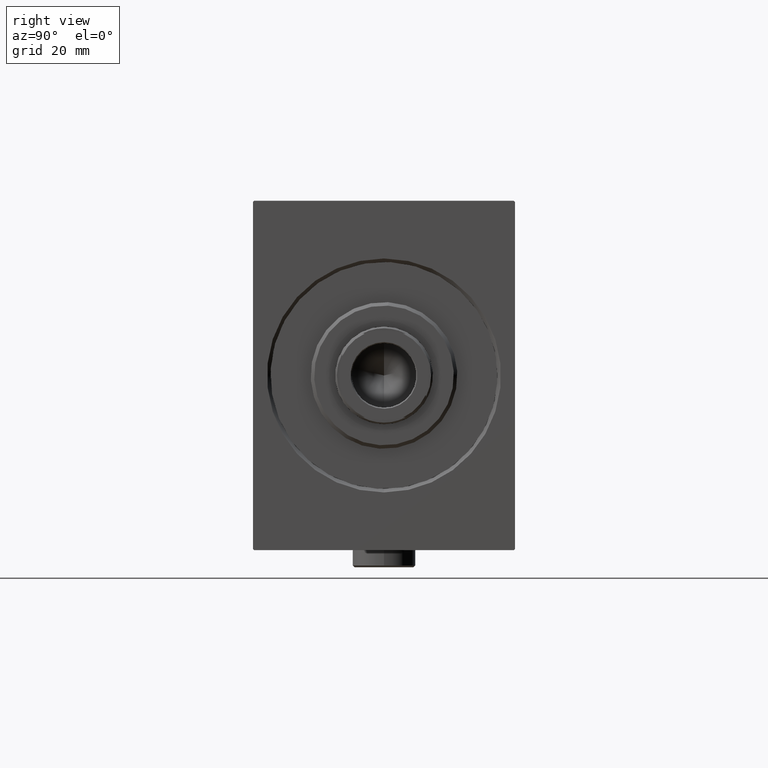
[diagram: clean part render]
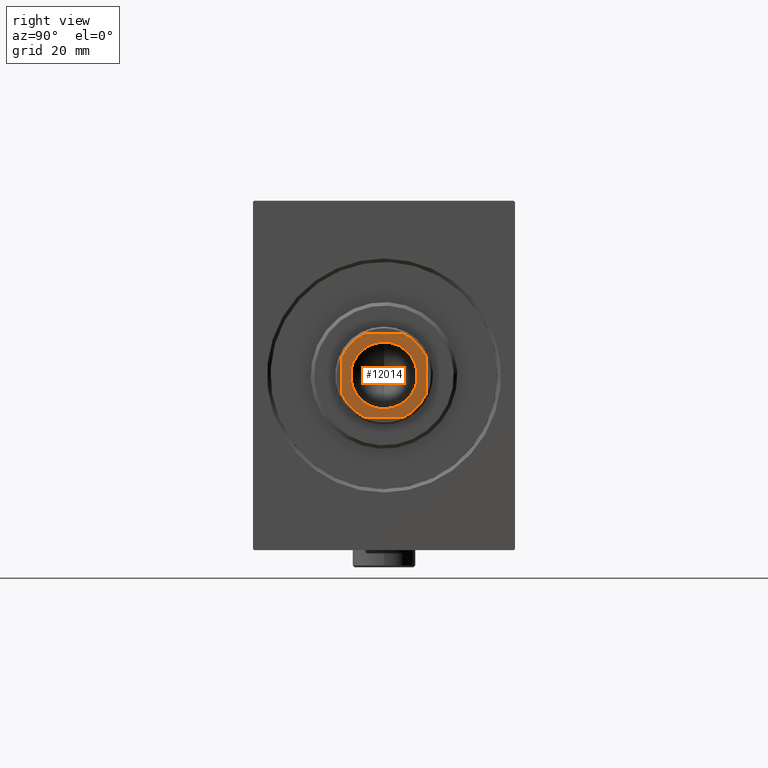
[diagram: same view with one face highlighted and labeled with its STEP entity id]
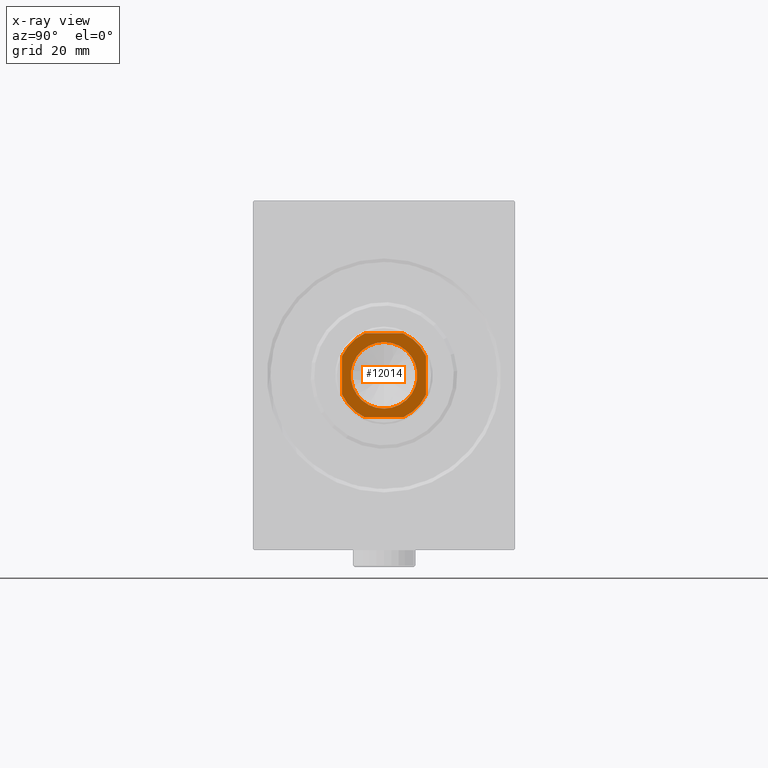
[diagram: x-ray of the same camera — body ghosted, the highlighted face saturated]
A machine part, right view. The second image highlights one B-rep face of the part: STEP entity #12014.
The next image is the same camera in x-ray: the body ghosted, the highlighted face saturated — about 0% of this face is hidden behind the body in this view.
In plain terms, the highlighted planar face has unit normal (1, 0, -0).
Its self-contained STEP definition (entity closure, byte-faithful):
#60 = CARTESIAN_POINT ( 'NONE',  ( -12.00000000000000000, -5.499090833946983281, 151.0000000000000284 ) ) ;
#241 = VECTOR ( 'NONE', #40934, 1000.000000000000000 ) ;
#541 = CARTESIAN_POINT ( 'NONE',  ( 9.549999999999988276, 0.000000000000000000, 151.0000000000000284 ) ) ;
#1641 = VECTOR ( 'NONE', #7407, 1000.000000000000000 ) ;
#2722 = AXIS2_PLACEMENT_3D ( 'NONE', #17039, #20176, #37433 ) ;
#3388 = EDGE_CURVE ( 'NONE', #6041, #34037, #35086, .T. ) ;
#3492 = VERTEX_POINT ( 'NONE', #28358 ) ;
#3734 = EDGE_CURVE ( 'NONE', #3492, #22047, #8133, .T. ) ;
#3996 = EDGE_LOOP ( 'NONE', ( #23073, #41024, #7631, #35671, #40204, #37001, #34047, #26185 ) ) ;
#5321 = DIRECTION ( 'NONE',  ( 1.000000000000000000, 0.000000000000000000, 0.000000000000000000 ) ) ;
#6041 = VERTEX_POINT ( 'NONE', #7402 ) ;
#6943 = CARTESIAN_POINT ( 'NONE',  ( 12.00000000000000533, -5.499090833947058776, 151.0000000000000284 ) ) ;
#7402 = CARTESIAN_POINT ( 'NONE',  ( 5.499090833946956636, 12.00000000000000000, 151.0000000000000284 ) ) ;
#7407 = DIRECTION ( 'NONE',  ( 1.000000000000000000, 0.000000000000000000, 0.000000000000000000 ) ) ;
#7516 = CARTESIAN_POINT ( 'NONE',  ( -12.00000000000000178, 11.99999999999999822, 151.0000000000000284 ) ) ;
#7631 = ORIENTED_EDGE ( 'NONE', *, *, #3388, .T. ) ;
#8133 = CIRCLE ( 'NONE', #33185, 9.549999999999988276 ) ;
#8283 = CIRCLE ( 'NONE', #8994, 9.549999999999988276 ) ;
#8994 = AXIS2_PLACEMENT_3D ( 'NONE', #26500, #16410, #12829 ) ;
#9186 = EDGE_CURVE ( 'NONE', #33722, #39877, #9707, .T. ) ;
#9707 = CIRCLE ( 'NONE', #34752, 13.20000000000002949 ) ;
#10161 = DIRECTION ( 'NONE',  ( 0.000000000000000000, -0.000000000000000000, -1.000000000000000000 ) ) ;
#10198 = LINE ( 'NONE', #37769, #24759 ) ;
#10243 = CARTESIAN_POINT ( 'NONE',  ( -12.00000000000000178, 11.99999999999999822, 151.0000000000000284 ) ) ;
#10612 = CARTESIAN_POINT ( 'NONE',  ( -12.00000000000000000, 5.499090833947076540, 151.0000000000000284 ) ) ;
#10627 = CIRCLE ( 'NONE', #2722, 13.19999999999997975 ) ;
#11609 = DIRECTION ( 'NONE',  ( 1.000000000000000000, 0.000000000000000000, 0.000000000000000000 ) ) ;
#12014 = ADVANCED_FACE ( 'NONE', ( #14554, #18136 ), #14780, .T. ) ;
#12829 = DIRECTION ( 'NONE',  ( 1.000000000000000000, 0.000000000000000000, 0.000000000000000000 ) ) ;
#13004 = AXIS2_PLACEMENT_3D ( 'NONE', #25295, #25079, #5321 ) ;
#13612 = LINE ( 'NONE', #10243, #39558 ) ;
#13825 = CARTESIAN_POINT ( 'NONE',  ( 0.000000000000000000, 0.000000000000000000, 151.0000000000000284 ) ) ;
#14200 = DIRECTION ( 'NONE',  ( 1.000000000000000000, 0.000000000000000000, 0.000000000000000000 ) ) ;
#14554 = FACE_BOUND ( 'NONE', #32228, .T. ) ;
#14689 = CARTESIAN_POINT ( 'NONE',  ( 5.499090833947070323, -12.00000000000000355, 151.0000000000000284 ) ) ;
#14764 = CIRCLE ( 'NONE', #18348, 13.19999999999998863 ) ;
#14780 = PLANE ( 'NONE',  #13004 ) ;
#14996 = EDGE_CURVE ( 'NONE', #18030, #36260, #13612, .T. ) ;
#16410 = DIRECTION ( 'NONE',  ( 0.000000000000000000, -0.000000000000000000, -1.000000000000000000 ) ) ;
#16860 = CIRCLE ( 'NONE', #17666, 13.20000000000002949 ) ;
#17039 = CARTESIAN_POINT ( 'NONE',  ( 0.000000000000000000, 0.000000000000000000, 151.0000000000000284 ) ) ;
#17666 = AXIS2_PLACEMENT_3D ( 'NONE', #13825, #20765, #30410 ) ;
#18030 = VERTEX_POINT ( 'NONE', #10612 ) ;
#18136 = FACE_OUTER_BOUND ( 'NONE', #3996, .T. ) ;
#18348 = AXIS2_PLACEMENT_3D ( 'NONE', #26730, #33456, #40417 ) ;
#20176 = DIRECTION ( 'NONE',  ( -0.000000000000000000, 0.000000000000000000, 1.000000000000000000 ) ) ;
#20554 = DIRECTION ( 'NONE',  ( 1.445602896647339163E-16, -1.000000000000000000, 0.000000000000000000 ) ) ;
#20765 = DIRECTION ( 'NONE',  ( -0.000000000000000000, 0.000000000000000000, 1.000000000000000000 ) ) ;
#21466 = EDGE_CURVE ( 'NONE', #30858, #33722, #31168, .T. ) ;
#22047 = VERTEX_POINT ( 'NONE', #541 ) ;
#22889 = CARTESIAN_POINT ( 'NONE',  ( -5.499090833947079204, 12.00000000000000000, 151.0000000000000284 ) ) ;
#23073 = ORIENTED_EDGE ( 'NONE', *, *, #32547, .T. ) ;
#24491 = CARTESIAN_POINT ( 'NONE',  ( 0.000000000000000000, 0.000000000000000000, 151.0000000000000284 ) ) ;
#24759 = VECTOR ( 'NONE', #30598, 1000.000000000000000 ) ;
#25079 = DIRECTION ( 'NONE',  ( -0.000000000000000000, 0.000000000000000000, 1.000000000000000000 ) ) ;
#25295 = CARTESIAN_POINT ( 'NONE',  ( 0.000000000000000000, 0.000000000000000000, 151.0000000000000284 ) ) ;
#26185 = ORIENTED_EDGE ( 'NONE', *, *, #9186, .T. ) ;
#26500 = CARTESIAN_POINT ( 'NONE',  ( 0.000000000000000000, 0.000000000000000000, 151.0000000000000284 ) ) ;
#26730 = CARTESIAN_POINT ( 'NONE',  ( 0.000000000000000000, 0.000000000000000000, 151.0000000000000284 ) ) ;
#27591 = EDGE_CURVE ( 'NONE', #22047, #3492, #8283, .T. ) ;
#28250 = CARTESIAN_POINT ( 'NONE',  ( -11.99999999999999822, -12.00000000000000355, 151.0000000000000284 ) ) ;
#28358 = CARTESIAN_POINT ( 'NONE',  ( -9.549999999999988276, 1.169537693185720980E-15, 151.0000000000000284 ) ) ;
#28667 = EDGE_CURVE ( 'NONE', #36260, #30858, #14764, .T. ) ;
#30410 = DIRECTION ( 'NONE',  ( 1.000000000000000000, 0.000000000000000000, 0.000000000000000000 ) ) ;
#30598 = DIRECTION ( 'NONE',  ( -2.891205793294678326E-16, 1.000000000000000000, -0.000000000000000000 ) ) ;
#30679 = EDGE_CURVE ( 'NONE', #34037, #18030, #16860, .T. ) ;
#30858 = VERTEX_POINT ( 'NONE', #35552 ) ;
#31168 = LINE ( 'NONE', #28250, #1641 ) ;
#31779 = CARTESIAN_POINT ( 'NONE',  ( 0.000000000000000000, 0.000000000000000000, 151.0000000000000284 ) ) ;
#32228 = EDGE_LOOP ( 'NONE', ( #37766, #39708 ) ) ;
#32547 = EDGE_CURVE ( 'NONE', #39877, #35516, #10198, .T. ) ;
#33185 = AXIS2_PLACEMENT_3D ( 'NONE', #24491, #10161, #14200 ) ;
#33456 = DIRECTION ( 'NONE',  ( -0.000000000000000000, 0.000000000000000000, 1.000000000000000000 ) ) ;
#33722 = VERTEX_POINT ( 'NONE', #14689 ) ;
#34037 = VERTEX_POINT ( 'NONE', #22889 ) ;
#34047 = ORIENTED_EDGE ( 'NONE', *, *, #21466, .T. ) ;
#34752 = AXIS2_PLACEMENT_3D ( 'NONE', #31779, #42311, #11609 ) ;
#35086 = LINE ( 'NONE', #7516, #241 ) ;
#35516 = VERTEX_POINT ( 'NONE', #43588 ) ;
#35552 = CARTESIAN_POINT ( 'NONE',  ( -5.499090833946973511, -12.00000000000000355, 151.0000000000000284 ) ) ;
#35671 = ORIENTED_EDGE ( 'NONE', *, *, #30679, .T. ) ;
#36260 = VERTEX_POINT ( 'NONE', #60 ) ;
#37001 = ORIENTED_EDGE ( 'NONE', *, *, #28667, .T. ) ;
#37433 = DIRECTION ( 'NONE',  ( 1.000000000000000000, 0.000000000000000000, 0.000000000000000000 ) ) ;
#37766 = ORIENTED_EDGE ( 'NONE', *, *, #27591, .T. ) ;
#37769 = CARTESIAN_POINT ( 'NONE',  ( 12.00000000000000000, 12.00000000000000000, 151.0000000000000284 ) ) ;
#38886 = EDGE_CURVE ( 'NONE', #35516, #6041, #10627, .T. ) ;
#39558 = VECTOR ( 'NONE', #20554, 1000.000000000000000 ) ;
#39708 = ORIENTED_EDGE ( 'NONE', *, *, #3734, .T. ) ;
#39877 = VERTEX_POINT ( 'NONE', #6943 ) ;
#40204 = ORIENTED_EDGE ( 'NONE', *, *, #14996, .T. ) ;
#40417 = DIRECTION ( 'NONE',  ( 1.000000000000000000, 0.000000000000000000, 0.000000000000000000 ) ) ;
#40934 = DIRECTION ( 'NONE',  ( -1.000000000000000000, -7.228014483236695816E-17, -0.000000000000000000 ) ) ;
#41024 = ORIENTED_EDGE ( 'NONE', *, *, #38886, .T. ) ;
#42311 = DIRECTION ( 'NONE',  ( -0.000000000000000000, 0.000000000000000000, 1.000000000000000000 ) ) ;
#43588 = CARTESIAN_POINT ( 'NONE',  ( 11.99999999999999822, 5.499090833946954859, 151.0000000000000284 ) ) ;